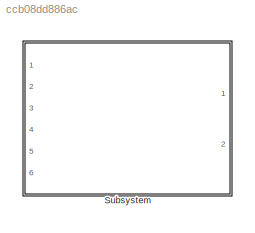
MODEL slx_ccb08dd886ac
KIND library
CONFIG AbsTol = auto
CONFIG FixedStep = auto
CONFIG MaxStep = auto
CONFIG MinStep = auto
CONFIG RelTol = 1e-3
CONFIG SampleTimeConstraint = Unconstrained
CONFIG Solver = ode45
CONFIG SolverMode = Auto
CONFIG SolverName = ode45
CONFIG StartTime = 0.0
CONFIG StopTime = 10.0
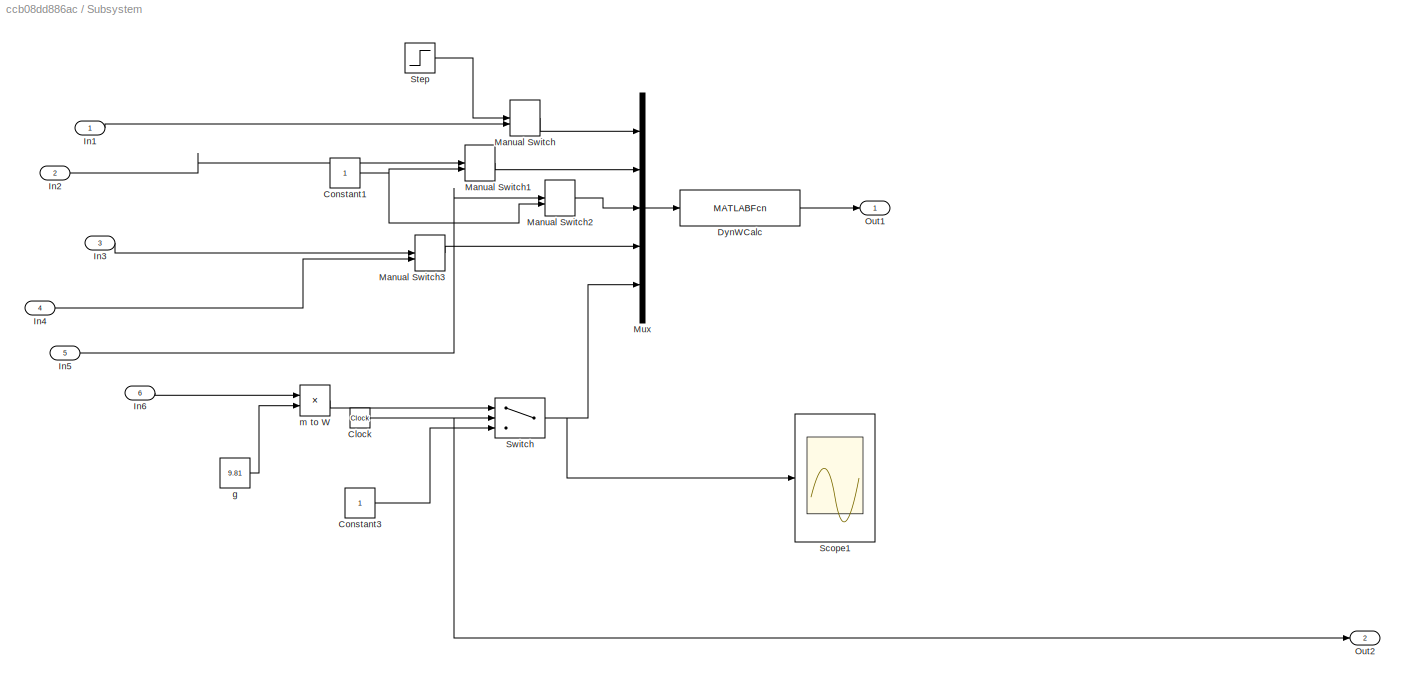
BLOCK [SubSystem] Subsystem
  Ports = [6, 2]
  RequestExecContextInheritance = off
BLOCK [Clock] Subsystem/Clock
BLOCK [Constant] Subsystem/Constant1
BLOCK [Constant] Subsystem/Constant3
BLOCK [MATLABFcn] Subsystem/DynWCalc
  MATLABFcn = DynWCalc
  Ports = [1, 1]
BLOCK [Inport] Subsystem/In1
  IconDisplay = Port number
BLOCK [Inport] Subsystem/In2
  IconDisplay = Port number
  Port = 2
BLOCK [Inport] Subsystem/In3
  IconDisplay = Port number
  Port = 3
BLOCK [Inport] Subsystem/In4
  IconDisplay = Port number
  Port = 4
BLOCK [Inport] Subsystem/In5
  IconDisplay = Port number
  Port = 5
BLOCK [Inport] Subsystem/In6
  IconDisplay = Port number
  Port = 6
BLOCK [ManualSwitch] Subsystem/Manual Switch
BLOCK [ManualSwitch] Subsystem/Manual Switch1
  CurrentSetting = 0
BLOCK [ManualSwitch] Subsystem/Manual Switch2
  CurrentSetting = 0
BLOCK [ManualSwitch] Subsystem/Manual Switch3
BLOCK [Mux] Subsystem/Mux
  DisplayOption = bar
  Inputs = 5
  Ports = [5, 1]
BLOCK [Outport] Subsystem/Out1
  IconDisplay = Port number
BLOCK [Outport] Subsystem/Out2
  IconDisplay = Port number
  Port = 2
BLOCK [Scope] Subsystem/Scope1
  Floating = off
  NumInputPorts = 1
  Ports = [1]
  SaveName = ScopeData1
  ZoomMode = yonly
BLOCK [Step] Subsystem/Step
  SampleTime = 0
BLOCK [Switch] Subsystem/Switch
  Criteria = u2 > Threshold
  InputSameDT = off
  SaturateOnIntegerOverflow = off
  Threshold = 10
BLOCK [Constant] Subsystem/g
  Value = 9.81
BLOCK [Product] Subsystem/m to W
  InputSameDT = off
  OutDataTypeStr = Inherit: Inherit via internal rule
  Ports = [2, 1]
  RndMeth = Floor
  SaturateOnIntegerOverflow = off
NET Subsystem/Clock:1 -> Subsystem/Out2:1, Subsystem/Switch:2
NET Subsystem/Constant1:1 -> Subsystem/Manual Switch1:2, Subsystem/Manual Switch2:2
LINE Subsystem/Constant3:1 -> Subsystem/Switch:3
LINE Subsystem/DynWCalc:1 -> Subsystem/Out1:1
LINE Subsystem/In1:1 -> Subsystem/Manual Switch:2
LINE Subsystem/In2:1 -> Subsystem/Manual Switch1:1
LINE Subsystem/In3:1 -> Subsystem/Manual Switch3:1
LINE Subsystem/In4:1 -> Subsystem/Manual Switch3:2
LINE Subsystem/In5:1 -> Subsystem/Manual Switch2:1
LINE Subsystem/In6:1 -> Subsystem/m to W:1
LINE Subsystem/Manual Switch1:1 -> Subsystem/Mux:2
LINE Subsystem/Manual Switch2:1 -> Subsystem/Mux:3
LINE Subsystem/Manual Switch3:1 -> Subsystem/Mux:4
LINE Subsystem/Manual Switch:1 -> Subsystem/Mux:1
LINE Subsystem/Mux:1 -> Subsystem/DynWCalc:1
LINE Subsystem/Step:1 -> Subsystem/Manual Switch:1
NET Subsystem/Switch:1 -> Subsystem/Mux:5, Subsystem/Scope1:1
LINE Subsystem/g:1 -> Subsystem/m to W:2
LINE Subsystem/m to W:1 -> Subsystem/Switch:1
note: NET lines group one-source signal fan-out (src -> all destinations, sorted); 1:1 wires keep LINE
